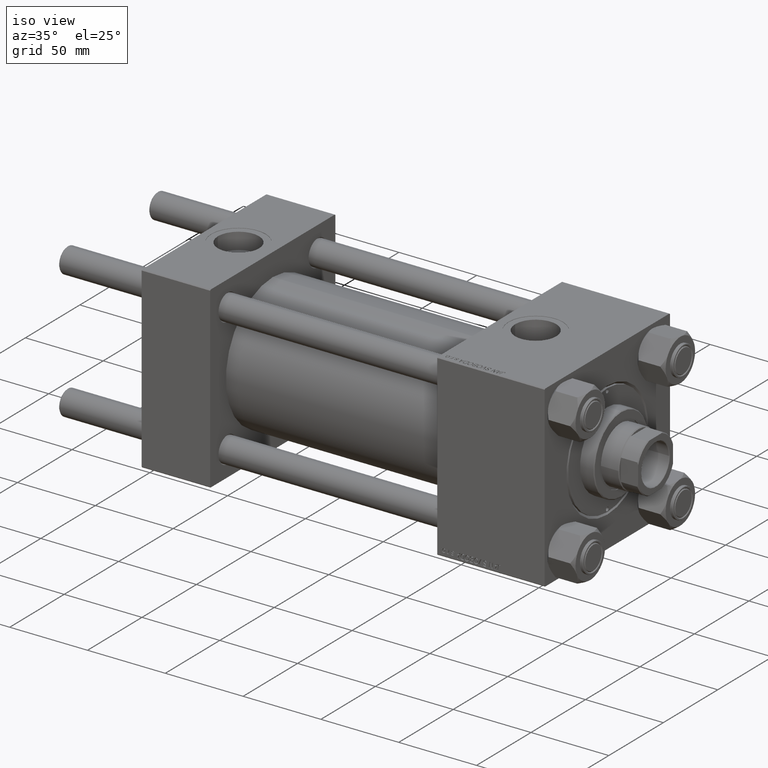
[diagram: clean part render]
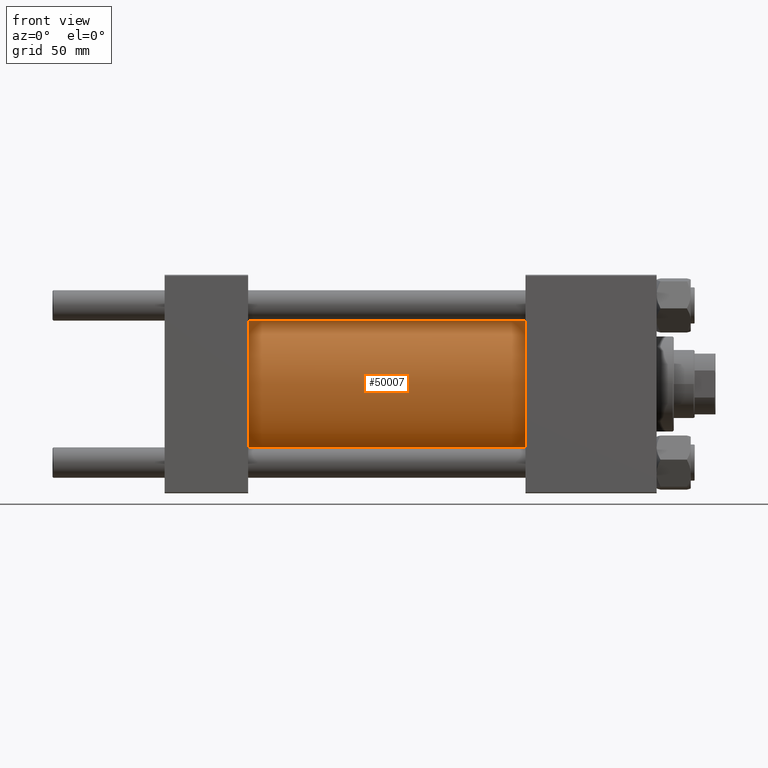
[diagram: tour spotlight — one face highlighted and labeled with its STEP entity id]
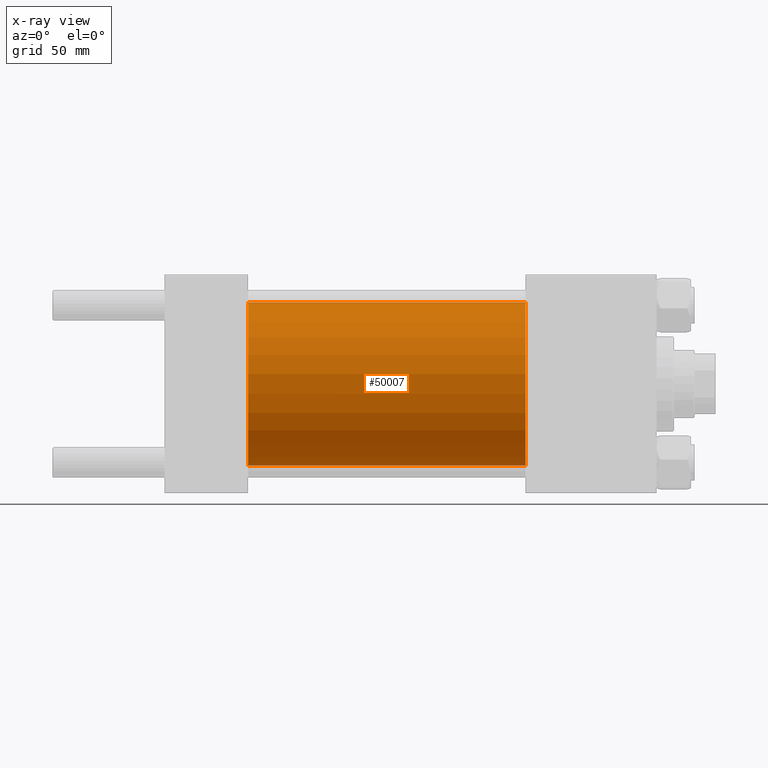
[diagram: x-ray of the same camera — body ghosted, this tour face saturated]
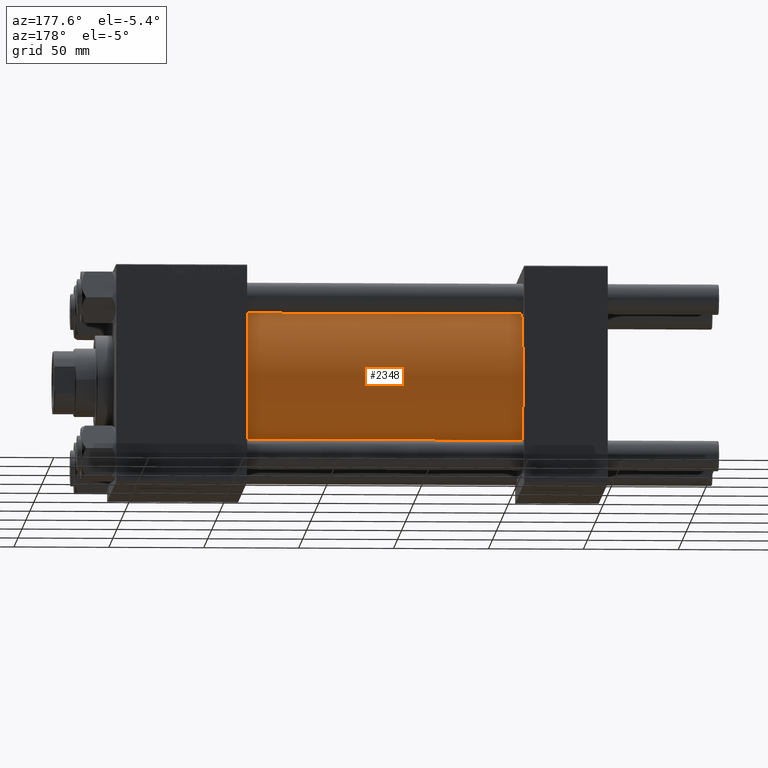
[diagram: tour spotlight — one face highlighted and labeled with its STEP entity id]
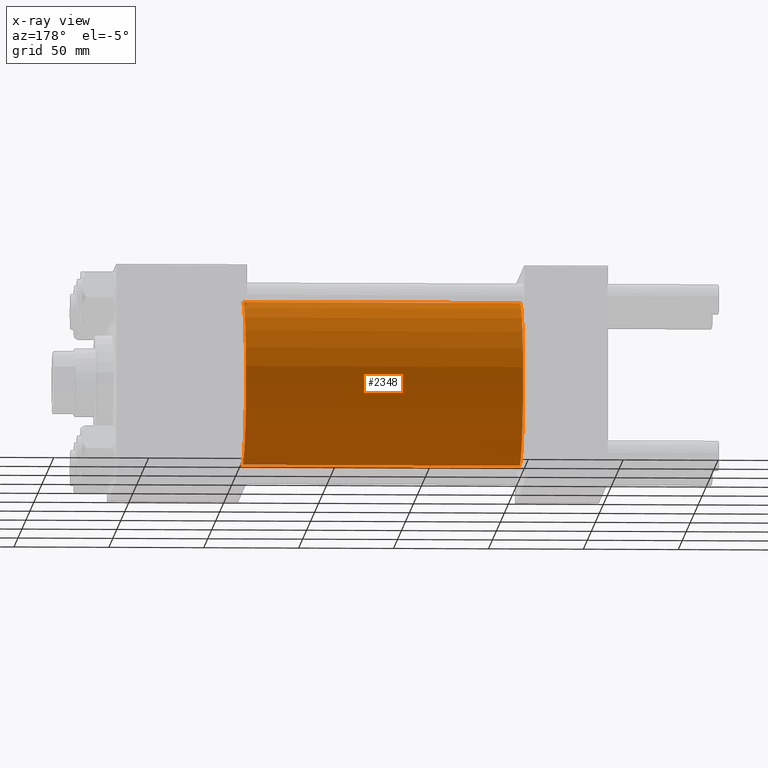
[diagram: x-ray of the same camera — body ghosted, this tour face saturated]
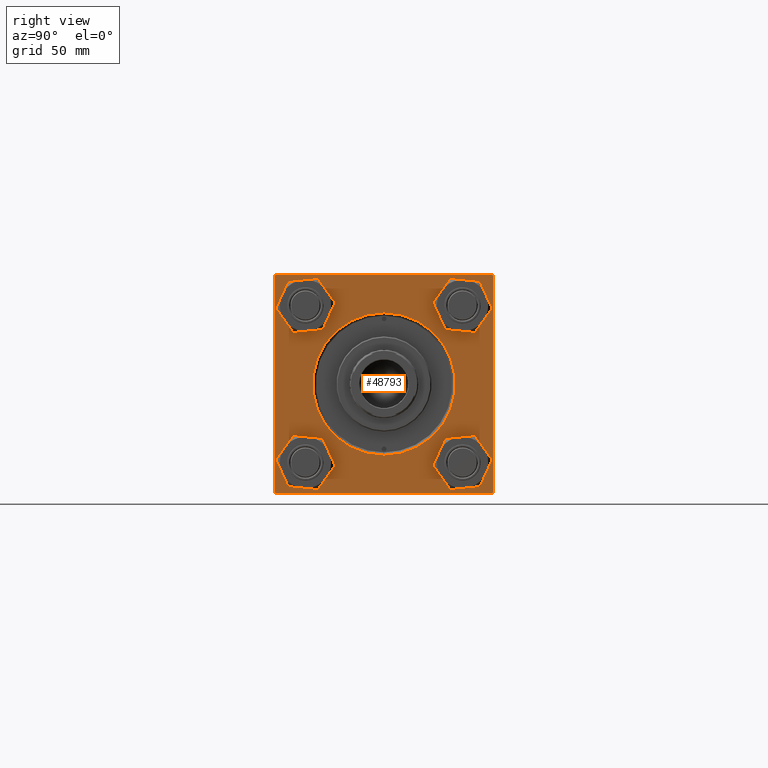
[diagram: tour spotlight — one face highlighted and labeled with its STEP entity id]
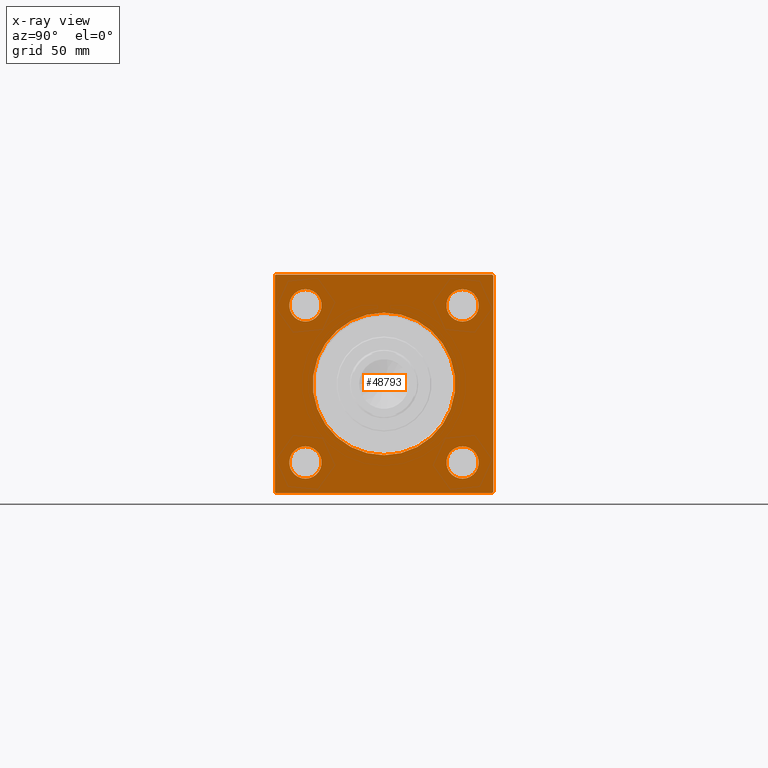
[diagram: x-ray of the same camera — body ghosted, this tour face saturated]
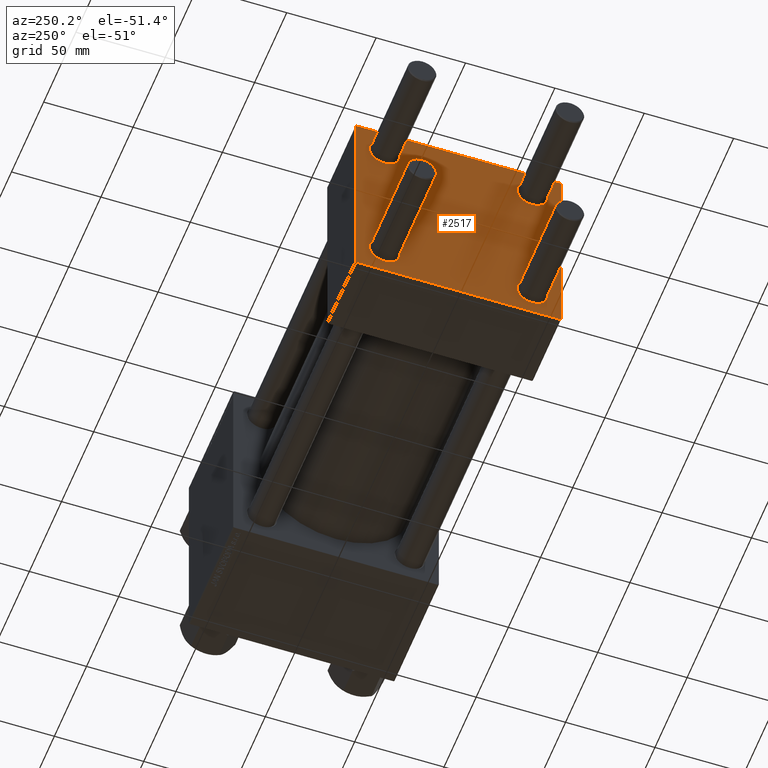
[diagram: tour spotlight — one face highlighted and labeled with its STEP entity id]
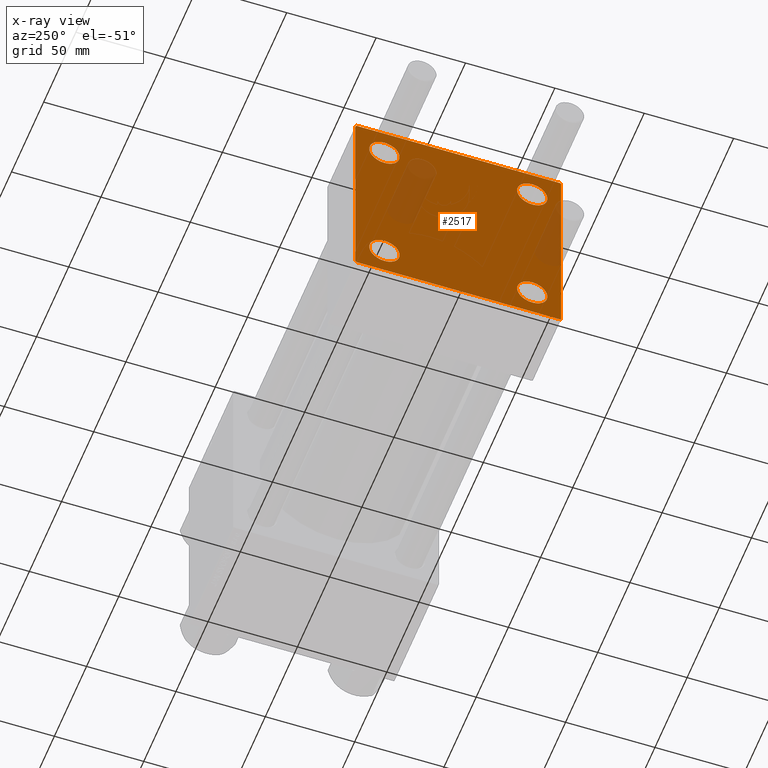
[diagram: x-ray of the same camera — body ghosted, this tour face saturated]
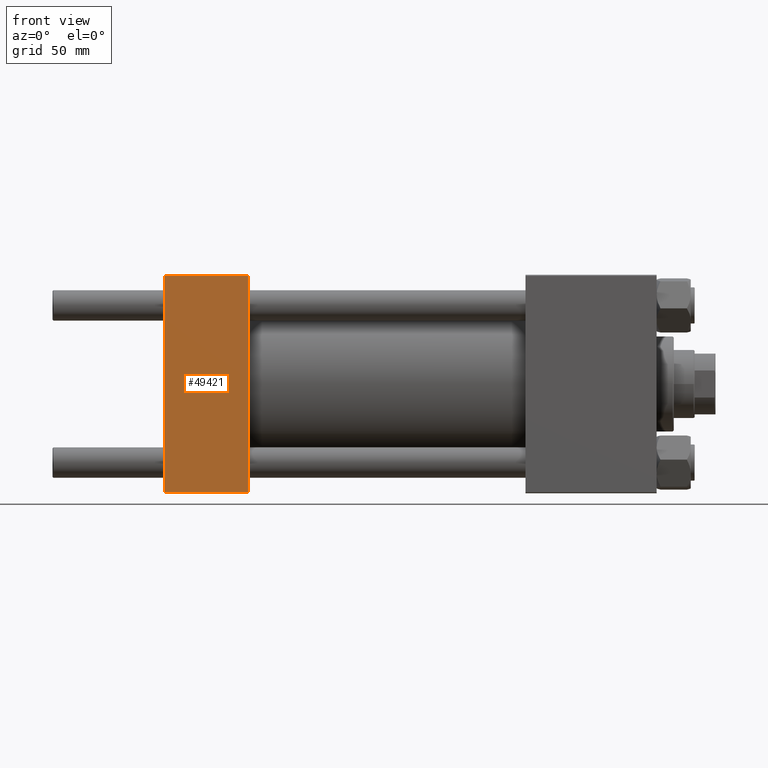
[diagram: tour spotlight — one face highlighted and labeled with its STEP entity id]
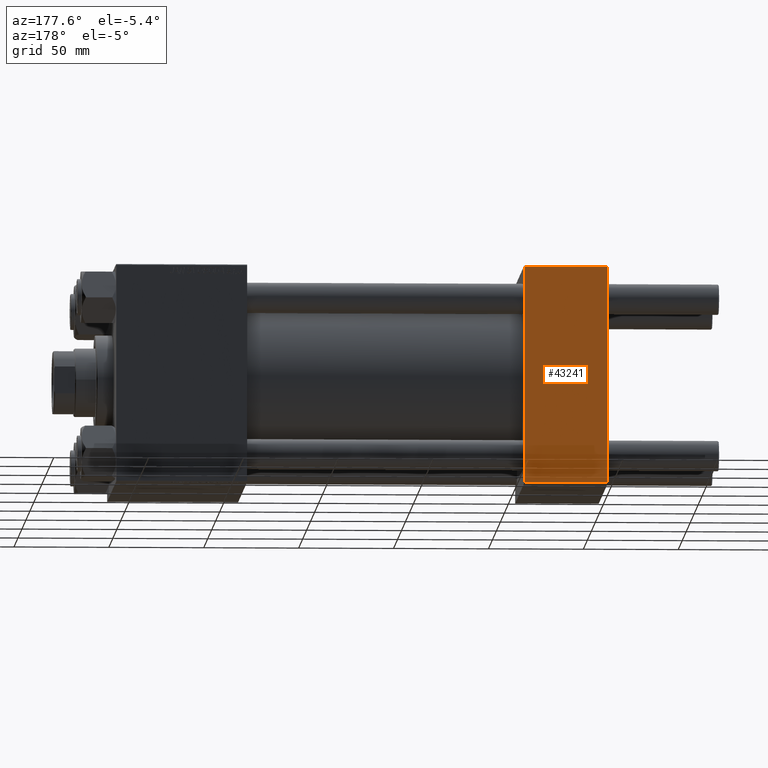
[diagram: tour spotlight — one face highlighted and labeled with its STEP entity id]
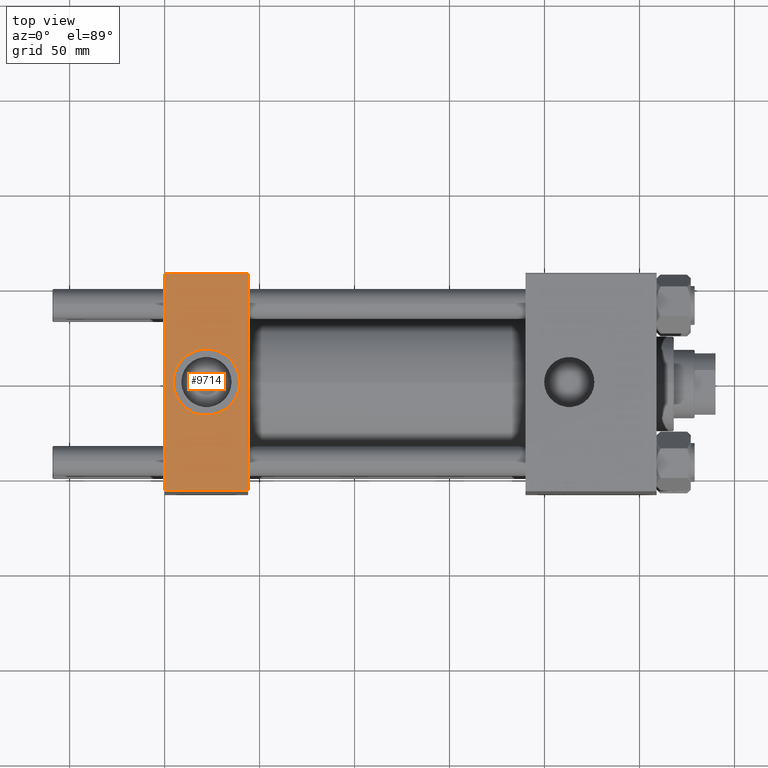
[diagram: tour spotlight — one face highlighted and labeled with its STEP entity id]
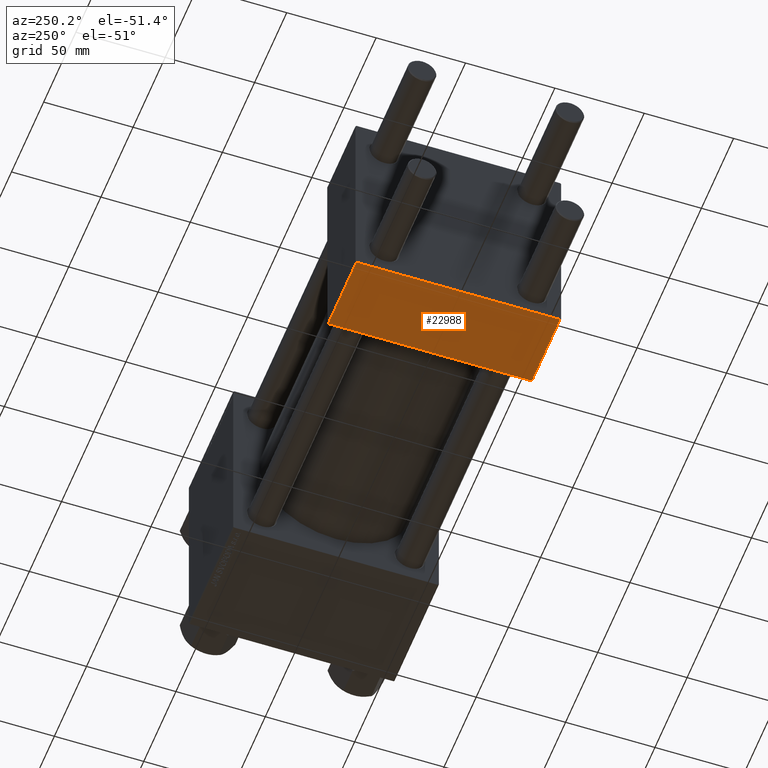
[diagram: tour spotlight — one face highlighted and labeled with its STEP entity id]
A machine part: a face-by-face anatomy tour. The part has 1188 B-rep faces; the first image is the clean iso view, then the 8 largest visible faces are spotlighted one at a time (largest first), each with its STEP entity span.

Face 1 — front view, entity #50007. An x-ray twin of the same camera follows (body ghosted, this face saturated) — the face is partly hidden behind the body. In plain terms, the highlighted cylindrical surface (partial cylindrical patch) has radius 43 mm, axis along (-1, -0, -0).
Definition (entity closure, byte-faithful):
#2848 = VERTEX_POINT ( 'NONE', #14844 ) ;
#2995 = CARTESIAN_POINT ( 'NONE',  ( 43.99999999999998579, 5.265981236333618470E-15, -43.00000000000000000 ) ) ;
#3286 = EDGE_CURVE ( 'NONE', #2848, #18917, #8701, .T. ) ;
#4464 = DIRECTION ( 'NONE',  ( 0.000000000000000000, 0.000000000000000000, 1.000000000000000000 ) ) ;
#7645 = EDGE_CURVE ( 'NONE', #2848, #29770, #43073, .T. ) ;
#8701 = LINE ( 'NONE', #22565, #14472 ) ;
#9273 = CARTESIAN_POINT ( 'NONE',  ( 190.0000000000000000, 0.000000000000000000, 0.000000000000000000 ) ) ;
#9527 = VECTOR ( 'NONE', #27617, 1000.000000000000000 ) ;
#9976 = ORIENTED_EDGE ( 'NONE', *, *, #42647, .F. ) ;
#10314 = CARTESIAN_POINT ( 'NONE',  ( 190.0000000000000000, 0.000000000000000000, 0.000000000000000000 ) ) ;
#13534 = DIRECTION ( 'NONE',  ( 1.000000000000000000, -0.000000000000000000, 0.000000000000000000 ) ) ;
#14087 = ORIENTED_EDGE ( 'NONE', *, *, #22125, .T. ) ;
#14472 = VECTOR ( 'NONE', #30713, 1000.000000000000000 ) ;
#14844 = CARTESIAN_POINT ( 'NONE',  ( 190.0000000000000000, 0.000000000000000000, 43.00000000000000000 ) ) ;
#15467 = AXIS2_PLACEMENT_3D ( 'NONE', #9273, #40353, #4464 ) ;
#17601 = CARTESIAN_POINT ( 'NONE',  ( 43.99999999999998579, 0.000000000000000000, 0.000000000000000000 ) ) ;
#18917 = VERTEX_POINT ( 'NONE', #42419 ) ;
#19478 = CARTESIAN_POINT ( 'NONE',  ( 190.0000000000000000, 5.265981236333618470E-15, -43.00000000000000000 ) ) ;
#19708 = EDGE_LOOP ( 'NONE', ( #9976, #48066, #41676, #14087 ) ) ;
#20498 = AXIS2_PLACEMENT_3D ( 'NONE', #17601, #13534, #39787 ) ;
#21533 = DIRECTION ( 'NONE',  ( 1.000000000000000000, 0.000000000000000000, 0.000000000000000000 ) ) ;
#22125 = EDGE_CURVE ( 'NONE', #18917, #48135, #31089, .T. ) ;
#22565 = CARTESIAN_POINT ( 'NONE',  ( 190.0000000000000000, 0.000000000000000000, 43.00000000000000000 ) ) ;
#24074 = FACE_OUTER_BOUND ( 'NONE', #19708, .T. ) ;
#27125 = LINE ( 'NONE', #19478, #9527 ) ;
#27617 = DIRECTION ( 'NONE',  ( -1.000000000000000000, -0.000000000000000000, -0.000000000000000000 ) ) ;
#27631 = AXIS2_PLACEMENT_3D ( 'NONE', #10314, #21533, #41132 ) ;
#29770 = VERTEX_POINT ( 'NONE', #48013 ) ;
#30713 = DIRECTION ( 'NONE',  ( -1.000000000000000000, -0.000000000000000000, -0.000000000000000000 ) ) ;
#31089 = CIRCLE ( 'NONE', #20498, 43.00000000000000000 ) ;
#35800 = CYLINDRICAL_SURFACE ( 'NONE', #15467, 43.00000000000000000 ) ;
#39787 = DIRECTION ( 'NONE',  ( 0.000000000000000000, 0.000000000000000000, 1.000000000000000000 ) ) ;
#40353 = DIRECTION ( 'NONE',  ( -1.000000000000000000, -0.000000000000000000, -0.000000000000000000 ) ) ;
#41132 = DIRECTION ( 'NONE',  ( 0.000000000000000000, 0.000000000000000000, -1.000000000000000000 ) ) ;
#41676 = ORIENTED_EDGE ( 'NONE', *, *, #3286, .T. ) ;
#42419 = CARTESIAN_POINT ( 'NONE',  ( 43.99999999999998579, 0.000000000000000000, 43.00000000000000000 ) ) ;
#42647 = EDGE_CURVE ( 'NONE', #29770, #48135, #27125, .T. ) ;
#43073 = CIRCLE ( 'NONE', #27631, 43.00000000000000000 ) ;
#48013 = CARTESIAN_POINT ( 'NONE',  ( 190.0000000000000000, 5.265981236333618470E-15, -43.00000000000000000 ) ) ;
#48066 = ORIENTED_EDGE ( 'NONE', *, *, #7645, .F. ) ;
#48135 = VERTEX_POINT ( 'NONE', #2995 ) ;
#50007 = ADVANCED_FACE ( 'NONE', ( #24074 ), #35800, .T. ) ;

Face 2 — auxiliary view, entity #2348. An x-ray twin of the same camera follows (body ghosted, this face saturated) — the face is partly hidden behind the body. In plain terms, the highlighted cylindrical surface (partial cylindrical patch) has radius 43 mm, axis along (-1, -0, -0).
Definition (entity closure, byte-faithful):
#1 = CIRCLE ( 'NONE', #11428, 43.00000000000000000 ) ;
#2348 = ADVANCED_FACE ( 'NONE', ( #6340 ), #18297, .T. ) ;
#2848 = VERTEX_POINT ( 'NONE', #14844 ) ;
#2995 = CARTESIAN_POINT ( 'NONE',  ( 43.99999999999998579, 5.265981236333618470E-15, -43.00000000000000000 ) ) ;
#3286 = EDGE_CURVE ( 'NONE', #2848, #18917, #8701, .T. ) ;
#3370 = DIRECTION ( 'NONE',  ( 1.000000000000000000, 0.000000000000000000, 0.000000000000000000 ) ) ;
#3655 = ORIENTED_EDGE ( 'NONE', *, *, #41262, .F. ) ;
#6340 = FACE_OUTER_BOUND ( 'NONE', #17895, .T. ) ;
#7167 = DIRECTION ( 'NONE',  ( 0.000000000000000000, 0.000000000000000000, 1.000000000000000000 ) ) ;
#8344 = ORIENTED_EDGE ( 'NONE', *, *, #3286, .F. ) ;
#8701 = LINE ( 'NONE', #22565, #14472 ) ;
#9299 = EDGE_CURVE ( 'NONE', #48135, #18917, #1, .T. ) ;
#9527 = VECTOR ( 'NONE', #27617, 1000.000000000000000 ) ;
#11106 = CIRCLE ( 'NONE', #46074, 43.00000000000000000 ) ;
#11428 = AXIS2_PLACEMENT_3D ( 'NONE', #26516, #42051, #7167 ) ;
#12448 = ORIENTED_EDGE ( 'NONE', *, *, #9299, .T. ) ;
#14472 = VECTOR ( 'NONE', #30713, 1000.000000000000000 ) ;
#14844 = CARTESIAN_POINT ( 'NONE',  ( 190.0000000000000000, 0.000000000000000000, 43.00000000000000000 ) ) ;
#17895 = EDGE_LOOP ( 'NONE', ( #3655, #36713, #12448, #8344 ) ) ;
#18297 = CYLINDRICAL_SURFACE ( 'NONE', #25016, 43.00000000000000000 ) ;
#18917 = VERTEX_POINT ( 'NONE', #42419 ) ;
#19478 = CARTESIAN_POINT ( 'NONE',  ( 190.0000000000000000, 5.265981236333618470E-15, -43.00000000000000000 ) ) ;
#22565 = CARTESIAN_POINT ( 'NONE',  ( 190.0000000000000000, 0.000000000000000000, 43.00000000000000000 ) ) ;
#25016 = AXIS2_PLACEMENT_3D ( 'NONE', #33856, #48856, #26451 ) ;
#26451 = DIRECTION ( 'NONE',  ( 0.000000000000000000, 0.000000000000000000, 1.000000000000000000 ) ) ;
#26516 = CARTESIAN_POINT ( 'NONE',  ( 43.99999999999998579, 0.000000000000000000, 0.000000000000000000 ) ) ;
#27125 = LINE ( 'NONE', #19478, #9527 ) ;
#27617 = DIRECTION ( 'NONE',  ( -1.000000000000000000, -0.000000000000000000, -0.000000000000000000 ) ) ;
#29770 = VERTEX_POINT ( 'NONE', #48013 ) ;
#30113 = DIRECTION ( 'NONE',  ( 0.000000000000000000, 0.000000000000000000, -1.000000000000000000 ) ) ;
#30713 = DIRECTION ( 'NONE',  ( -1.000000000000000000, -0.000000000000000000, -0.000000000000000000 ) ) ;
#33693 = CARTESIAN_POINT ( 'NONE',  ( 190.0000000000000000, 0.000000000000000000, 0.000000000000000000 ) ) ;
#33856 = CARTESIAN_POINT ( 'NONE',  ( 190.0000000000000000, 0.000000000000000000, 0.000000000000000000 ) ) ;
#36713 = ORIENTED_EDGE ( 'NONE', *, *, #42647, .T. ) ;
#41262 = EDGE_CURVE ( 'NONE', #29770, #2848, #11106, .T. ) ;
#42051 = DIRECTION ( 'NONE',  ( 1.000000000000000000, -0.000000000000000000, 0.000000000000000000 ) ) ;
#42419 = CARTESIAN_POINT ( 'NONE',  ( 43.99999999999998579, 0.000000000000000000, 43.00000000000000000 ) ) ;
#42647 = EDGE_CURVE ( 'NONE', #29770, #48135, #27125, .T. ) ;
#46074 = AXIS2_PLACEMENT_3D ( 'NONE', #33693, #3370, #30113 ) ;
#48013 = CARTESIAN_POINT ( 'NONE',  ( 190.0000000000000000, 5.265981236333618470E-15, -43.00000000000000000 ) ) ;
#48135 = VERTEX_POINT ( 'NONE', #2995 ) ;
#48856 = DIRECTION ( 'NONE',  ( -1.000000000000000000, -0.000000000000000000, -0.000000000000000000 ) ) ;

Face 3 — right view, entity #48793. An x-ray twin of the same camera follows (body ghosted, this face saturated) — the face is partly hidden behind the body. In plain terms, the highlighted planar face has unit normal (-1, 0, 0).
Definition (entity closure, byte-faithful):
#248 = CARTESIAN_POINT ( 'NONE',  ( 259.0000000000000000, 57.50000000000000000, -57.49999999999996447 ) ) ;
#540 = FACE_BOUND ( 'NONE', #28983, .T. ) ;
#748 = CARTESIAN_POINT ( 'NONE',  ( 259.0000000000000000, -57.49999999999999289, 57.00000000000004974 ) ) ;
#790 = EDGE_CURVE ( 'NONE', #48081, #39484, #19279, .T. ) ;
#798 = CARTESIAN_POINT ( 'NONE',  ( 259.0000000000000000, -41.34999999999998721, -32.85000000000005826 ) ) ;
#1090 = ORIENTED_EDGE ( 'NONE', *, *, #50160, .T. ) ;
#1249 = CARTESIAN_POINT ( 'NONE',  ( 259.0000000000000000, 41.34999999999999432, 41.35000000000000142 ) ) ;
#1254 = VECTOR ( 'NONE', #32238, 1000.000000000000000 ) ;
#1333 = ORIENTED_EDGE ( 'NONE', *, *, #18568, .T. ) ;
#1602 = EDGE_CURVE ( 'NONE', #26840, #41482, #22557, .T. ) ;
#1749 = DIRECTION ( 'NONE',  ( -1.000000000000000000, 0.000000000000000000, -0.000000000000000000 ) ) ;
#1751 = CARTESIAN_POINT ( 'NONE',  ( 259.0000000000000000, 57.00000000000000000, 57.50000000000000711 ) ) ;
#1819 = VERTEX_POINT ( 'NONE', #47420 ) ;
#1892 = CARTESIAN_POINT ( 'NONE',  ( 259.0000000000000000, 4.592425496802571211E-15, 37.49999999999997868 ) ) ;
#2346 = EDGE_CURVE ( 'NONE', #43845, #5719, #19320, .T. ) ;
#2864 = CARTESIAN_POINT ( 'NONE',  ( 259.0000000000000000, 57.50000000000000000, -56.99999999999996447 ) ) ;
#2903 = DIRECTION ( 'NONE',  ( -1.000000000000000000, 0.000000000000000000, -0.000000000000000000 ) ) ;
#3948 = DIRECTION ( 'NONE',  ( 0.000000000000000000, 0.000000000000000000, 1.000000000000000000 ) ) ;
#5084 = AXIS2_PLACEMENT_3D ( 'NONE', #33074, #1749, #48576 ) ;
#5330 = DIRECTION ( 'NONE',  ( -0.000000000000000000, -0.7071067811865524577, -0.7071067811865426878 ) ) ;
#5719 = VERTEX_POINT ( 'NONE', #39695 ) ;
#6047 = ORIENTED_EDGE ( 'NONE', *, *, #20749, .T. ) ;
#6327 = VERTEX_POINT ( 'NONE', #46450 ) ;
#6941 = DIRECTION ( 'NONE',  ( -1.000000000000000000, 0.000000000000000000, -0.000000000000000000 ) ) ;
#7929 = EDGE_CURVE ( 'NONE', #23716, #6327, #10545, .T. ) ;
#8194 = FACE_BOUND ( 'NONE', #16434, .T. ) ;
#8541 = CARTESIAN_POINT ( 'NONE',  ( 259.0000000000000000, -57.49999999999999289, 57.49999999999999289 ) ) ;
#8933 = FACE_OUTER_BOUND ( 'NONE', #39358, .T. ) ;
#9847 = ORIENTED_EDGE ( 'NONE', *, *, #31489, .T. ) ;
#10259 = CARTESIAN_POINT ( 'NONE',  ( 259.0000000000000000, 57.00000000000000000, 57.50000000000000711 ) ) ;
#10545 = CIRCLE ( 'NONE', #30883, 8.499999999999952038 ) ;
#11399 = CIRCLE ( 'NONE', #39865, 8.499999999999952038 ) ;
#11536 = EDGE_CURVE ( 'NONE', #41482, #26840, #39810, .T. ) ;
#12145 = EDGE_CURVE ( 'NONE', #5719, #43845, #33311, .T. ) ;
#12504 = ORIENTED_EDGE ( 'NONE', *, *, #12823, .T. ) ;
#12532 = ORIENTED_EDGE ( 'NONE', *, *, #17402, .F. ) ;
#12755 = DIRECTION ( 'NONE',  ( -1.000000000000000000, 0.000000000000000000, -0.000000000000000000 ) ) ;
#12823 = EDGE_CURVE ( 'NONE', #13407, #20132, #20622, .T. ) ;
#12922 = CARTESIAN_POINT ( 'NONE',  ( 259.0000000000000000, 57.50000000000000000, 57.50000000000000711 ) ) ;
#12950 = DIRECTION ( 'NONE',  ( 0.000000000000000000, -0.7071067811865474617, 0.7071067811865474617 ) ) ;
#13331 = CARTESIAN_POINT ( 'NONE',  ( 259.0000000000000000, 57.50000000000000000, -56.99999999999996447 ) ) ;
#13407 = VERTEX_POINT ( 'NONE', #21943 ) ;
#13786 = ORIENTED_EDGE ( 'NONE', *, *, #2346, .T. ) ;
#13929 = DIRECTION ( 'NONE',  ( 0.000000000000000000, 0.000000000000000000, -1.000000000000000000 ) ) ;
#13986 = VERTEX_POINT ( 'NONE', #13331 ) ;
#14574 = DIRECTION ( 'NONE',  ( -0.000000000000000000, 0.7071067811865474617, 0.7071067811865474617 ) ) ;
#15503 = CARTESIAN_POINT ( 'NONE',  ( 259.0000000000000000, 41.34999999999999432, 32.85000000000005116 ) ) ;
#15569 = VERTEX_POINT ( 'NONE', #18601 ) ;
#15641 = CIRCLE ( 'NONE', #28642, 37.49999999999997868 ) ;
#16071 = ORIENTED_EDGE ( 'NONE', *, *, #48609, .T. ) ;
#16285 = LINE ( 'NONE', #248, #18022 ) ;
#16434 = EDGE_LOOP ( 'NONE', ( #40187, #25197 ) ) ;
#16791 = CARTESIAN_POINT ( 'NONE',  ( 259.0000000000000000, -57.49999999999999289, 57.00000000000004974 ) ) ;
#17402 = EDGE_CURVE ( 'NONE', #36926, #1819, #16285, .T. ) ;
#17833 = AXIS2_PLACEMENT_3D ( 'NONE', #1249, #21112, #44023 ) ;
#18022 = VECTOR ( 'NONE', #23924, 1000.000000000000000 ) ;
#18568 = EDGE_CURVE ( 'NONE', #44629, #41616, #15641, .T. ) ;
#18601 = CARTESIAN_POINT ( 'NONE',  ( 259.0000000000000000, -57.49999999999999289, -57.00000000000003553 ) ) ;
#18892 = CARTESIAN_POINT ( 'NONE',  ( 259.0000000000000000, 41.34999999999999432, 49.84999999999995879 ) ) ;
#19214 = ORIENTED_EDGE ( 'NONE', *, *, #790, .T. ) ;
#19271 = ORIENTED_EDGE ( 'NONE', *, *, #11536, .T. ) ;
#19279 = CIRCLE ( 'NONE', #49358, 8.499999999999952038 ) ;
#19320 = CIRCLE ( 'NONE', #37200, 8.499999999999952038 ) ;
#19403 = DIRECTION ( 'NONE',  ( -0.000000000000000000, 0.000000000000000000, 1.000000000000000000 ) ) ;
#20074 = CARTESIAN_POINT ( 'NONE',  ( 259.0000000000000000, 0.000000000000000000, -37.49999999999997868 ) ) ;
#20132 = VERTEX_POINT ( 'NONE', #748 ) ;
#20307 = VECTOR ( 'NONE', #14574, 1000.000000000000114 ) ;
#20622 = LINE ( 'NONE', #16791, #28466 ) ;
#20714 = LINE ( 'NONE', #20968, #33771 ) ;
#20749 = EDGE_CURVE ( 'NONE', #15569, #1819, #42899, .T. ) ;
#20968 = CARTESIAN_POINT ( 'NONE',  ( 259.0000000000000000, 57.50000000000000000, 57.50000000000000711 ) ) ;
#21112 = DIRECTION ( 'NONE',  ( -1.000000000000000000, 0.000000000000000000, -0.000000000000000000 ) ) ;
#21325 = LINE ( 'NONE', #12922, #25780 ) ;
#21943 = CARTESIAN_POINT ( 'NONE',  ( 259.0000000000000000, -57.00000000000004263, 57.49999999999999289 ) ) ;
#22133 = DIRECTION ( 'NONE',  ( -1.000000000000000000, 0.000000000000000000, -0.000000000000000000 ) ) ;
#22557 = CIRCLE ( 'NONE', #34754, 8.499999999999952038 ) ;
#23406 = EDGE_CURVE ( 'NONE', #41616, #44629, #41687, .T. ) ;
#23484 = DIRECTION ( 'NONE',  ( -1.000000000000000000, 0.000000000000000000, -0.000000000000000000 ) ) ;
#23552 = DIRECTION ( 'NONE',  ( 0.000000000000000000, 0.7071067811865524577, -0.7071067811865426878 ) ) ;
#23706 = VECTOR ( 'NONE', #23552, 1000.000000000000000 ) ;
#23716 = VERTEX_POINT ( 'NONE', #798 ) ;
#23733 = FACE_BOUND ( 'NONE', #39722, .T. ) ;
#23807 = ORIENTED_EDGE ( 'NONE', *, *, #23406, .T. ) ;
#23924 = DIRECTION ( 'NONE',  ( 0.000000000000000000, -1.000000000000000000, -1.206764157201257291E-16 ) ) ;
#24130 = DIRECTION ( 'NONE',  ( -1.000000000000000000, 0.000000000000000000, -0.000000000000000000 ) ) ;
#24556 = CARTESIAN_POINT ( 'NONE',  ( 259.0000000000000000, -41.34999999999998721, 41.35000000000000853 ) ) ;
#24744 = VERTEX_POINT ( 'NONE', #10259 ) ;
#24924 = DIRECTION ( 'NONE',  ( -1.000000000000000000, 0.000000000000000000, -0.000000000000000000 ) ) ;
#24956 = CARTESIAN_POINT ( 'NONE',  ( 259.0000000000000000, 41.34999999999999432, -49.84999999999995879 ) ) ;
#25197 = ORIENTED_EDGE ( 'NONE', *, *, #7929, .T. ) ;
#25780 = VECTOR ( 'NONE', #13929, 1000.000000000000000 ) ;
#25900 = ORIENTED_EDGE ( 'NONE', *, *, #30059, .T. ) ;
#26325 = CARTESIAN_POINT ( 'NONE',  ( 259.0000000000000000, 41.34999999999999432, -41.35000000000000142 ) ) ;
#26417 = CARTESIAN_POINT ( 'NONE',  ( 259.0000000000000000, 57.50000000000000000, 57.00000000000000711 ) ) ;
#26717 = ORIENTED_EDGE ( 'NONE', *, *, #12145, .T. ) ;
#26840 = VERTEX_POINT ( 'NONE', #18892 ) ;
#27398 = LINE ( 'NONE', #8541, #1254 ) ;
#27876 = DIRECTION ( 'NONE',  ( -1.000000000000000000, 0.000000000000000000, -0.000000000000000000 ) ) ;
#27949 = CARTESIAN_POINT ( 'NONE',  ( 259.0000000000000000, 41.34999999999999432, 41.35000000000000142 ) ) ;
#28040 = FACE_BOUND ( 'NONE', #34347, .T. ) ;
#28466 = VECTOR ( 'NONE', #5330, 1000.000000000000000 ) ;
#28642 = AXIS2_PLACEMENT_3D ( 'NONE', #33591, #24924, #40469 ) ;
#28983 = EDGE_LOOP ( 'NONE', ( #23807, #1333 ) ) ;
#29881 = ORIENTED_EDGE ( 'NONE', *, *, #1602, .T. ) ;
#30059 = EDGE_CURVE ( 'NONE', #24744, #13407, #20714, .T. ) ;
#30883 = AXIS2_PLACEMENT_3D ( 'NONE', #41823, #6941, #34208 ) ;
#31489 = EDGE_CURVE ( 'NONE', #20132, #15569, #27398, .T. ) ;
#32238 = DIRECTION ( 'NONE',  ( 0.000000000000000000, 0.000000000000000000, -1.000000000000000000 ) ) ;
#33074 = CARTESIAN_POINT ( 'NONE',  ( 259.0000000000000000, 0.000000000000000000, 0.000000000000000000 ) ) ;
#33078 = LINE ( 'NONE', #1751, #41886 ) ;
#33311 = CIRCLE ( 'NONE', #47935, 8.499999999999952038 ) ;
#33394 = EDGE_CURVE ( 'NONE', #48918, #24744, #33078, .T. ) ;
#33591 = CARTESIAN_POINT ( 'NONE',  ( 259.0000000000000000, 0.000000000000000000, 0.000000000000000000 ) ) ;
#33771 = VECTOR ( 'NONE', #36254, 1000.000000000000000 ) ;
#34208 = DIRECTION ( 'NONE',  ( 0.000000000000000000, 0.000000000000000000, 1.000000000000000000 ) ) ;
#34347 = EDGE_LOOP ( 'NONE', ( #26717, #13786 ) ) ;
#34754 = AXIS2_PLACEMENT_3D ( 'NONE', #27949, #24130, #43716 ) ;
#35449 = FACE_BOUND ( 'NONE', #36322, .T. ) ;
#35784 = CARTESIAN_POINT ( 'NONE',  ( 259.0000000000000000, 41.34999999999999432, -41.35000000000000142 ) ) ;
#36254 = DIRECTION ( 'NONE',  ( 0.000000000000000000, -1.000000000000000000, -1.206764157201257291E-16 ) ) ;
#36322 = EDGE_LOOP ( 'NONE', ( #19271, #29881 ) ) ;
#36926 = VERTEX_POINT ( 'NONE', #47893 ) ;
#37200 = AXIS2_PLACEMENT_3D ( 'NONE', #41225, #22133, #37678 ) ;
#37678 = DIRECTION ( 'NONE',  ( 0.000000000000000000, 0.000000000000000000, 1.000000000000000000 ) ) ;
#38977 = EDGE_CURVE ( 'NONE', #48918, #13986, #21325, .T. ) ;
#39348 = CARTESIAN_POINT ( 'NONE',  ( 259.0000000000000000, -57.00000000000004263, -57.49999999999997868 ) ) ;
#39358 = EDGE_LOOP ( 'NONE', ( #9847, #6047, #12532, #16071, #44728, #44638, #25900, #12504 ) ) ;
#39484 = VERTEX_POINT ( 'NONE', #24956 ) ;
#39602 = DIRECTION ( 'NONE',  ( 0.000000000000000000, 0.000000000000000000, 1.000000000000000000 ) ) ;
#39695 = CARTESIAN_POINT ( 'NONE',  ( 259.0000000000000000, -41.34999999999998721, 32.85000000000005826 ) ) ;
#39722 = EDGE_LOOP ( 'NONE', ( #1090, #19214 ) ) ;
#39771 = CARTESIAN_POINT ( 'NONE',  ( 259.0000000000000000, -41.34999999999998721, -41.35000000000000853 ) ) ;
#39810 = CIRCLE ( 'NONE', #17833, 8.499999999999952038 ) ;
#39865 = AXIS2_PLACEMENT_3D ( 'NONE', #26325, #2903, #49995 ) ;
#40187 = ORIENTED_EDGE ( 'NONE', *, *, #49467, .T. ) ;
#40469 = DIRECTION ( 'NONE',  ( 0.000000000000000000, 0.000000000000000000, 1.000000000000000000 ) ) ;
#41225 = CARTESIAN_POINT ( 'NONE',  ( 259.0000000000000000, -41.34999999999998721, 41.35000000000000853 ) ) ;
#41482 = VERTEX_POINT ( 'NONE', #15503 ) ;
#41491 = CIRCLE ( 'NONE', #43085, 8.499999999999952038 ) ;
#41616 = VERTEX_POINT ( 'NONE', #20074 ) ;
#41687 = CIRCLE ( 'NONE', #5084, 37.49999999999997868 ) ;
#41823 = CARTESIAN_POINT ( 'NONE',  ( 259.0000000000000000, -41.34999999999998721, -41.35000000000000853 ) ) ;
#41886 = VECTOR ( 'NONE', #12950, 1000.000000000000114 ) ;
#42459 = CARTESIAN_POINT ( 'NONE',  ( 259.0000000000000000, 41.34999999999999432, -32.85000000000005116 ) ) ;
#42899 = LINE ( 'NONE', #39348, #23706 ) ;
#43085 = AXIS2_PLACEMENT_3D ( 'NONE', #39771, #23484, #47894 ) ;
#43590 = CARTESIAN_POINT ( 'NONE',  ( 259.0000000000000000, -41.34999999999998721, 49.84999999999996589 ) ) ;
#43716 = DIRECTION ( 'NONE',  ( 0.000000000000000000, 0.000000000000000000, 1.000000000000000000 ) ) ;
#43845 = VERTEX_POINT ( 'NONE', #43590 ) ;
#44023 = DIRECTION ( 'NONE',  ( 0.000000000000000000, 0.000000000000000000, 1.000000000000000000 ) ) ;
#44394 = DIRECTION ( 'NONE',  ( -1.000000000000000000, 0.000000000000000000, -0.000000000000000000 ) ) ;
#44629 = VERTEX_POINT ( 'NONE', #1892 ) ;
#44638 = ORIENTED_EDGE ( 'NONE', *, *, #33394, .T. ) ;
#44674 = AXIS2_PLACEMENT_3D ( 'NONE', #47129, #12755, #19403 ) ;
#44728 = ORIENTED_EDGE ( 'NONE', *, *, #38977, .F. ) ;
#45373 = LINE ( 'NONE', #2864, #20307 ) ;
#46450 = CARTESIAN_POINT ( 'NONE',  ( 259.0000000000000000, -41.34999999999998721, -49.84999999999996589 ) ) ;
#47129 = CARTESIAN_POINT ( 'NONE',  ( 259.0000000000000000, 0.000000000000000000, 0.000000000000000000 ) ) ;
#47420 = CARTESIAN_POINT ( 'NONE',  ( 259.0000000000000000, -57.00000000000004263, -57.49999999999997868 ) ) ;
#47637 = PLANE ( 'NONE',  #44674 ) ;
#47893 = CARTESIAN_POINT ( 'NONE',  ( 259.0000000000000000, 57.00000000000000000, -57.49999999999996447 ) ) ;
#47894 = DIRECTION ( 'NONE',  ( 0.000000000000000000, 0.000000000000000000, 1.000000000000000000 ) ) ;
#47935 = AXIS2_PLACEMENT_3D ( 'NONE', #24556, #44394, #39602 ) ;
#48081 = VERTEX_POINT ( 'NONE', #42459 ) ;
#48576 = DIRECTION ( 'NONE',  ( 0.000000000000000000, 0.000000000000000000, 1.000000000000000000 ) ) ;
#48609 = EDGE_CURVE ( 'NONE', #36926, #13986, #45373, .T. ) ;
#48793 = ADVANCED_FACE ( 'NONE', ( #8194, #23733, #35449, #28040, #540, #8933 ), #47637, .F. ) ;
#48918 = VERTEX_POINT ( 'NONE', #26417 ) ;
#49358 = AXIS2_PLACEMENT_3D ( 'NONE', #35784, #27876, #3948 ) ;
#49467 = EDGE_CURVE ( 'NONE', #6327, #23716, #41491, .T. ) ;
#49995 = DIRECTION ( 'NONE',  ( 0.000000000000000000, 0.000000000000000000, 1.000000000000000000 ) ) ;
#50160 = EDGE_CURVE ( 'NONE', #39484, #48081, #11399, .T. ) ;

Face 4 — auxiliary view, entity #2517. An x-ray twin of the same camera follows (body ghosted, this face saturated) — the face is partly hidden behind the body. In plain terms, the highlighted planar face has unit normal (-1, 0, 0).
Definition (entity closure, byte-faithful):
#375 = ORIENTED_EDGE ( 'NONE', *, *, #32703, .T. ) ;
#420 = ORIENTED_EDGE ( 'NONE', *, *, #35538, .T. ) ;
#483 = AXIS2_PLACEMENT_3D ( 'NONE', #25878, #31720, #11349 ) ;
#650 = CARTESIAN_POINT ( 'NONE',  ( 0.000000000000000000, -57.50000000000000711, 57.00000000000000711 ) ) ;
#713 = FACE_OUTER_BOUND ( 'NONE', #6873, .T. ) ;
#751 = DIRECTION ( 'NONE',  ( 0.000000000000000000, 0.000000000000000000, -1.000000000000000000 ) ) ;
#1207 = FACE_BOUND ( 'NONE', #11846, .T. ) ;
#1584 = CARTESIAN_POINT ( 'NONE',  ( 0.000000000000000000, 57.24999999999922551, 57.25000000000081712 ) ) ;
#2517 = ADVANCED_FACE ( 'NONE', ( #1207, #36355, #9337, #36610, #713 ), #43238, .T. ) ;
#2567 = VECTOR ( 'NONE', #11151, 1000.000000000000114 ) ;
#3209 = ORIENTED_EDGE ( 'NONE', *, *, #21263, .T. ) ;
#3535 = DIRECTION ( 'NONE',  ( 1.000000000000000000, -0.000000000000000000, 0.000000000000000000 ) ) ;
#3712 = VERTEX_POINT ( 'NONE', #25185 ) ;
#3770 = CARTESIAN_POINT ( 'NONE',  ( -0.000000000000000000, -57.25000000000081712, 57.24999999999922551 ) ) ;
#4094 = CARTESIAN_POINT ( 'NONE',  ( 0.000000000000000000, 41.34999999999999432, -41.35000000000000142 ) ) ;
#4218 = AXIS2_PLACEMENT_3D ( 'NONE', #8509, #39590, #4692 ) ;
#4692 = DIRECTION ( 'NONE',  ( 0.000000000000000000, 0.000000000000000000, 1.000000000000000000 ) ) ;
#4858 = CARTESIAN_POINT ( 'NONE',  ( 0.000000000000000000, -41.34999999999998721, 41.35000000000000853 ) ) ;
#5109 = DIRECTION ( 'NONE',  ( 0.000000000000000000, 0.000000000000000000, 1.000000000000000000 ) ) ;
#5168 = VERTEX_POINT ( 'NONE', #650 ) ;
#5193 = VERTEX_POINT ( 'NONE', #36552 ) ;
#5900 = EDGE_CURVE ( 'NONE', #43977, #21392, #47872, .T. ) ;
#6365 = EDGE_CURVE ( 'NONE', #27907, #11776, #20962, .T. ) ;
#6873 = EDGE_LOOP ( 'NONE', ( #375, #26128, #34626, #36430, #46717, #3209, #47441, #32723 ) ) ;
#6938 = CARTESIAN_POINT ( 'NONE',  ( 0.000000000000000000, -57.00000000000003553, 57.49999999999999289 ) ) ;
#8509 = CARTESIAN_POINT ( 'NONE',  ( 0.000000000000000000, -41.34999999999998721, -41.35000000000000853 ) ) ;
#8633 = DIRECTION ( 'NONE',  ( -0.000000000000000000, -0.7071067811865376918, -0.7071067811865573427 ) ) ;
#9072 = CARTESIAN_POINT ( 'NONE',  ( 0.000000000000000000, 41.34999999999999432, 32.85000000000000853 ) ) ;
#9213 = LINE ( 'NONE', #1584, #38713 ) ;
#9337 = FACE_BOUND ( 'NONE', #13523, .T. ) ;
#9377 = CARTESIAN_POINT ( 'NONE',  ( 0.000000000000000000, 41.34999999999999432, -32.85000000000000853 ) ) ;
#9424 = CARTESIAN_POINT ( 'NONE',  ( 0.000000000000000000, 41.34999999999999432, 49.85000000000000142 ) ) ;
#9913 = DIRECTION ( 'NONE',  ( 0.000000000000000000, 0.000000000000000000, 1.000000000000000000 ) ) ;
#10206 = VERTEX_POINT ( 'NONE', #22464 ) ;
#10395 = CARTESIAN_POINT ( 'NONE',  ( 0.000000000000000000, -57.00000000000000711, -57.50000000000000711 ) ) ;
#10418 = CARTESIAN_POINT ( 'NONE',  ( 0.000000000000000000, 41.34999999999999432, 41.35000000000000142 ) ) ;
#11151 = DIRECTION ( 'NONE',  ( -0.000000000000000000, 0.7071067811865376918, 0.7071067811865573427 ) ) ;
#11349 = DIRECTION ( 'NONE',  ( 0.000000000000000000, 0.000000000000000000, 1.000000000000000000 ) ) ;
#11386 = EDGE_CURVE ( 'NONE', #3712, #27907, #12215, .T. ) ;
#11479 = DIRECTION ( 'NONE',  ( 0.000000000000000000, 0.000000000000000000, 1.000000000000000000 ) ) ;
#11776 = VERTEX_POINT ( 'NONE', #10395 ) ;
#11846 = EDGE_LOOP ( 'NONE', ( #20738, #32885 ) ) ;
#12215 = LINE ( 'NONE', #41832, #35023 ) ;
#12766 = CIRCLE ( 'NONE', #50179, 8.499999999999992895 ) ;
#12851 = DIRECTION ( 'NONE',  ( 1.000000000000000000, -0.000000000000000000, 0.000000000000000000 ) ) ;
#13380 = EDGE_CURVE ( 'NONE', #11776, #5193, #25754, .T. ) ;
#13523 = EDGE_LOOP ( 'NONE', ( #15806, #420 ) ) ;
#14680 = VERTEX_POINT ( 'NONE', #9072 ) ;
#14744 = CARTESIAN_POINT ( 'NONE',  ( 0.000000000000000000, 57.49999999999999289, 57.00000000000003553 ) ) ;
#14803 = DIRECTION ( 'NONE',  ( 0.000000000000000000, -1.000000000000000000, -1.206764157201257045E-16 ) ) ;
#15192 = DIRECTION ( 'NONE',  ( 0.000000000000000000, 0.000000000000000000, 1.000000000000000000 ) ) ;
#15284 = VECTOR ( 'NONE', #14803, 1000.000000000000000 ) ;
#15806 = ORIENTED_EDGE ( 'NONE', *, *, #16448, .T. ) ;
#15863 = VERTEX_POINT ( 'NONE', #21001 ) ;
#16448 = EDGE_CURVE ( 'NONE', #37329, #15863, #24490, .T. ) ;
#16725 = EDGE_LOOP ( 'NONE', ( #36245, #25123 ) ) ;
#17717 = ORIENTED_EDGE ( 'NONE', *, *, #31112, .T. ) ;
#17767 = EDGE_CURVE ( 'NONE', #49424, #10206, #41618, .T. ) ;
#19172 = AXIS2_PLACEMENT_3D ( 'NONE', #34101, #3535, #29758 ) ;
#19377 = DIRECTION ( 'NONE',  ( 1.000000000000000000, -0.000000000000000000, 0.000000000000000000 ) ) ;
#20738 = ORIENTED_EDGE ( 'NONE', *, *, #5900, .T. ) ;
#20814 = DIRECTION ( 'NONE',  ( -1.000000000000000000, 0.000000000000000000, -0.000000000000000000 ) ) ;
#20962 = LINE ( 'NONE', #28351, #47898 ) ;
#21001 = CARTESIAN_POINT ( 'NONE',  ( 0.000000000000000000, 41.34999999999999432, -49.85000000000000142 ) ) ;
#21053 = CARTESIAN_POINT ( 'NONE',  ( 0.000000000000000000, -41.34999999999998721, 32.85000000000001563 ) ) ;
#21263 = EDGE_CURVE ( 'NONE', #5168, #22772, #23132, .T. ) ;
#21392 = VERTEX_POINT ( 'NONE', #21053 ) ;
#22464 = CARTESIAN_POINT ( 'NONE',  ( 0.000000000000000000, -41.34999999999998721, -32.85000000000001563 ) ) ;
#22772 = VERTEX_POINT ( 'NONE', #6938 ) ;
#22906 = VERTEX_POINT ( 'NONE', #9424 ) ;
#23132 = LINE ( 'NONE', #3770, #2567 ) ;
#23705 = DIRECTION ( 'NONE',  ( 0.000000000000000000, 0.000000000000000000, 1.000000000000000000 ) ) ;
#24209 = DIRECTION ( 'NONE',  ( 1.000000000000000000, -0.000000000000000000, 0.000000000000000000 ) ) ;
#24490 = CIRCLE ( 'NONE', #36717, 8.499999999999992895 ) ;
#24837 = CIRCLE ( 'NONE', #44355, 8.499999999999992895 ) ;
#25123 = ORIENTED_EDGE ( 'NONE', *, *, #17767, .T. ) ;
#25185 = CARTESIAN_POINT ( 'NONE',  ( 0.000000000000000000, 57.49999999999999289, -57.00000000000000711 ) ) ;
#25646 = CIRCLE ( 'NONE', #19172, 8.499999999999992895 ) ;
#25650 = AXIS2_PLACEMENT_3D ( 'NONE', #10418, #48361, #9913 ) ;
#25747 = CARTESIAN_POINT ( 'NONE',  ( 0.000000000000000000, -41.34999999999998721, 49.85000000000000853 ) ) ;
#25754 = LINE ( 'NONE', #26006, #32549 ) ;
#25878 = CARTESIAN_POINT ( 'NONE',  ( 0.000000000000000000, 41.34999999999999432, -41.35000000000000142 ) ) ;
#26006 = CARTESIAN_POINT ( 'NONE',  ( 0.000000000000000000, -57.25000000000000711, -57.25000000000000711 ) ) ;
#26128 = ORIENTED_EDGE ( 'NONE', *, *, #11386, .T. ) ;
#27907 = VERTEX_POINT ( 'NONE', #29977 ) ;
#28204 = CARTESIAN_POINT ( 'NONE',  ( 0.000000000000000000, 0.000000000000000000, 0.000000000000000000 ) ) ;
#28351 = CARTESIAN_POINT ( 'NONE',  ( 0.000000000000000000, 57.49999999999999289, -57.49999999999999289 ) ) ;
#29758 = DIRECTION ( 'NONE',  ( 0.000000000000000000, 0.000000000000000000, 1.000000000000000000 ) ) ;
#29977 = CARTESIAN_POINT ( 'NONE',  ( 0.000000000000000000, 57.00000000000002132, -57.49999999999999289 ) ) ;
#30037 = EDGE_LOOP ( 'NONE', ( #41869, #17717 ) ) ;
#30596 = CARTESIAN_POINT ( 'NONE',  ( 0.000000000000000000, 57.49999999999999289, 57.50000000000000711 ) ) ;
#31112 = EDGE_CURVE ( 'NONE', #14680, #22906, #41094, .T. ) ;
#31533 = CARTESIAN_POINT ( 'NONE',  ( 0.000000000000000000, 57.00000000000000711, 57.50000000000000711 ) ) ;
#31720 = DIRECTION ( 'NONE',  ( 1.000000000000000000, -0.000000000000000000, 0.000000000000000000 ) ) ;
#31743 = EDGE_CURVE ( 'NONE', #21392, #43977, #24837, .T. ) ;
#32225 = CARTESIAN_POINT ( 'NONE',  ( 0.000000000000000000, 41.34999999999999432, 41.35000000000000142 ) ) ;
#32549 = VECTOR ( 'NONE', #41791, 1000.000000000000114 ) ;
#32703 = EDGE_CURVE ( 'NONE', #43472, #3712, #43867, .T. ) ;
#32723 = ORIENTED_EDGE ( 'NONE', *, *, #36009, .T. ) ;
#32885 = ORIENTED_EDGE ( 'NONE', *, *, #31743, .T. ) ;
#33910 = LINE ( 'NONE', #30596, #15284 ) ;
#34101 = CARTESIAN_POINT ( 'NONE',  ( 0.000000000000000000, -41.34999999999998721, -41.35000000000000853 ) ) ;
#34626 = ORIENTED_EDGE ( 'NONE', *, *, #6365, .T. ) ;
#35023 = VECTOR ( 'NONE', #8633, 1000.000000000000114 ) ;
#35146 = EDGE_CURVE ( 'NONE', #10206, #49424, #25646, .T. ) ;
#35217 = VERTEX_POINT ( 'NONE', #31533 ) ;
#35538 = EDGE_CURVE ( 'NONE', #15863, #37329, #39503, .T. ) ;
#35655 = LINE ( 'NONE', #43514, #46072 ) ;
#36009 = EDGE_CURVE ( 'NONE', #35217, #43472, #9213, .T. ) ;
#36245 = ORIENTED_EDGE ( 'NONE', *, *, #35146, .T. ) ;
#36355 = FACE_BOUND ( 'NONE', #16725, .T. ) ;
#36430 = ORIENTED_EDGE ( 'NONE', *, *, #13380, .T. ) ;
#36552 = CARTESIAN_POINT ( 'NONE',  ( 0.000000000000000000, -57.50000000000000711, -57.00000000000000711 ) ) ;
#36610 = FACE_BOUND ( 'NONE', #30037, .T. ) ;
#36717 = AXIS2_PLACEMENT_3D ( 'NONE', #4094, #19377, #23705 ) ;
#37195 = EDGE_CURVE ( 'NONE', #5168, #5193, #35655, .T. ) ;
#37329 = VERTEX_POINT ( 'NONE', #9377 ) ;
#38713 = VECTOR ( 'NONE', #44099, 1000.000000000000114 ) ;
#38817 = EDGE_CURVE ( 'NONE', #22906, #14680, #12766, .T. ) ;
#39503 = CIRCLE ( 'NONE', #483, 8.499999999999992895 ) ;
#39590 = DIRECTION ( 'NONE',  ( 1.000000000000000000, -0.000000000000000000, 0.000000000000000000 ) ) ;
#41094 = CIRCLE ( 'NONE', #25650, 8.499999999999992895 ) ;
#41618 = CIRCLE ( 'NONE', #4218, 8.499999999999992895 ) ;
#41791 = DIRECTION ( 'NONE',  ( 0.000000000000000000, -0.7071067811865474617, 0.7071067811865474617 ) ) ;
#41832 = CARTESIAN_POINT ( 'NONE',  ( 0.000000000000000000, 57.25000000000081712, -57.24999999999922551 ) ) ;
#41869 = ORIENTED_EDGE ( 'NONE', *, *, #38817, .T. ) ;
#42215 = AXIS2_PLACEMENT_3D ( 'NONE', #45997, #49571, #15192 ) ;
#42771 = VECTOR ( 'NONE', #44120, 1000.000000000000000 ) ;
#43238 = PLANE ( 'NONE',  #44520 ) ;
#43472 = VERTEX_POINT ( 'NONE', #14744 ) ;
#43514 = CARTESIAN_POINT ( 'NONE',  ( 0.000000000000000000, -57.50000000000000711, 57.49999999999999289 ) ) ;
#43867 = LINE ( 'NONE', #48194, #42771 ) ;
#43977 = VERTEX_POINT ( 'NONE', #25747 ) ;
#44015 = EDGE_CURVE ( 'NONE', #35217, #22772, #33910, .T. ) ;
#44099 = DIRECTION ( 'NONE',  ( 0.000000000000000000, 0.7071067811865573427, -0.7071067811865376918 ) ) ;
#44120 = DIRECTION ( 'NONE',  ( 0.000000000000000000, 0.000000000000000000, -1.000000000000000000 ) ) ;
#44355 = AXIS2_PLACEMENT_3D ( 'NONE', #4858, #24209, #5109 ) ;
#44520 = AXIS2_PLACEMENT_3D ( 'NONE', #28204, #20814, #47797 ) ;
#45997 = CARTESIAN_POINT ( 'NONE',  ( 0.000000000000000000, -41.34999999999998721, 41.35000000000000853 ) ) ;
#46072 = VECTOR ( 'NONE', #751, 1000.000000000000000 ) ;
#46717 = ORIENTED_EDGE ( 'NONE', *, *, #37195, .F. ) ;
#47441 = ORIENTED_EDGE ( 'NONE', *, *, #44015, .F. ) ;
#47694 = DIRECTION ( 'NONE',  ( 0.000000000000000000, -1.000000000000000000, -1.206764157201257045E-16 ) ) ;
#47797 = DIRECTION ( 'NONE',  ( -0.000000000000000000, 0.000000000000000000, 1.000000000000000000 ) ) ;
#47872 = CIRCLE ( 'NONE', #42215, 8.499999999999992895 ) ;
#47898 = VECTOR ( 'NONE', #47694, 1000.000000000000000 ) ;
#48194 = CARTESIAN_POINT ( 'NONE',  ( 0.000000000000000000, 57.49999999999999289, 57.50000000000000711 ) ) ;
#48361 = DIRECTION ( 'NONE',  ( 1.000000000000000000, -0.000000000000000000, 0.000000000000000000 ) ) ;
#49424 = VERTEX_POINT ( 'NONE', #50220 ) ;
#49571 = DIRECTION ( 'NONE',  ( 1.000000000000000000, -0.000000000000000000, 0.000000000000000000 ) ) ;
#50179 = AXIS2_PLACEMENT_3D ( 'NONE', #32225, #12851, #11479 ) ;
#50220 = CARTESIAN_POINT ( 'NONE',  ( 0.000000000000000000, -41.34999999999998721, -49.85000000000000853 ) ) ;

Face 5 — front view, entity #49421. In plain terms, the highlighted planar face has unit normal (0, 1, 0).
Definition (entity closure, byte-faithful):
#650 = CARTESIAN_POINT ( 'NONE',  ( 0.000000000000000000, -57.50000000000000711, 57.00000000000000711 ) ) ;
#751 = DIRECTION ( 'NONE',  ( 0.000000000000000000, 0.000000000000000000, -1.000000000000000000 ) ) ;
#2238 = VECTOR ( 'NONE', #8637, 1000.000000000000000 ) ;
#5168 = VERTEX_POINT ( 'NONE', #650 ) ;
#5193 = VERTEX_POINT ( 'NONE', #36552 ) ;
#7369 = LINE ( 'NONE', #47051, #45011 ) ;
#8637 = DIRECTION ( 'NONE',  ( -1.000000000000000000, 0.000000000000000000, 0.000000000000000000 ) ) ;
#9563 = CARTESIAN_POINT ( 'NONE',  ( 44.00000000000000000, -57.50000000000000711, 57.00000000000000711 ) ) ;
#11049 = ORIENTED_EDGE ( 'NONE', *, *, #43297, .T. ) ;
#11266 = CARTESIAN_POINT ( 'NONE',  ( 44.00000000000000000, -57.50000000000000711, 57.49999999999999289 ) ) ;
#12734 = VECTOR ( 'NONE', #27814, 1000.000000000000000 ) ;
#14764 = VERTEX_POINT ( 'NONE', #9563 ) ;
#15338 = FACE_OUTER_BOUND ( 'NONE', #23090, .T. ) ;
#16847 = LINE ( 'NONE', #39777, #12734 ) ;
#17891 = AXIS2_PLACEMENT_3D ( 'NONE', #11266, #26295, #30383 ) ;
#20463 = CARTESIAN_POINT ( 'NONE',  ( 44.00000000000000000, -57.50000000000000711, -57.00000000000000711 ) ) ;
#23090 = EDGE_LOOP ( 'NONE', ( #47917, #39857, #39812, #11049 ) ) ;
#24183 = CARTESIAN_POINT ( 'NONE',  ( 44.00000000000000000, -57.50000000000000711, 57.00000000000000711 ) ) ;
#26207 = EDGE_CURVE ( 'NONE', #5193, #40346, #7369, .T. ) ;
#26295 = DIRECTION ( 'NONE',  ( -0.000000000000000000, 1.000000000000000000, 0.000000000000000000 ) ) ;
#27814 = DIRECTION ( 'NONE',  ( 0.000000000000000000, 0.000000000000000000, -1.000000000000000000 ) ) ;
#30383 = DIRECTION ( 'NONE',  ( 0.000000000000000000, -0.000000000000000000, 1.000000000000000000 ) ) ;
#35626 = DIRECTION ( 'NONE',  ( 1.000000000000000000, 0.000000000000000000, 0.000000000000000000 ) ) ;
#35655 = LINE ( 'NONE', #43514, #46072 ) ;
#36552 = CARTESIAN_POINT ( 'NONE',  ( 0.000000000000000000, -57.50000000000000711, -57.00000000000000711 ) ) ;
#37195 = EDGE_CURVE ( 'NONE', #5168, #5193, #35655, .T. ) ;
#37772 = EDGE_CURVE ( 'NONE', #14764, #40346, #16847, .T. ) ;
#39777 = CARTESIAN_POINT ( 'NONE',  ( 44.00000000000000000, -57.50000000000000711, 57.49999999999999289 ) ) ;
#39812 = ORIENTED_EDGE ( 'NONE', *, *, #37772, .F. ) ;
#39857 = ORIENTED_EDGE ( 'NONE', *, *, #26207, .T. ) ;
#40346 = VERTEX_POINT ( 'NONE', #20463 ) ;
#43297 = EDGE_CURVE ( 'NONE', #14764, #5168, #48343, .T. ) ;
#43514 = CARTESIAN_POINT ( 'NONE',  ( 0.000000000000000000, -57.50000000000000711, 57.49999999999999289 ) ) ;
#45011 = VECTOR ( 'NONE', #35626, 1000.000000000000000 ) ;
#46072 = VECTOR ( 'NONE', #751, 1000.000000000000000 ) ;
#47051 = CARTESIAN_POINT ( 'NONE',  ( 44.00000000000000000, -57.50000000000000711, -57.00000000000000711 ) ) ;
#47917 = ORIENTED_EDGE ( 'NONE', *, *, #37195, .T. ) ;
#48343 = LINE ( 'NONE', #24183, #2238 ) ;
#49421 = ADVANCED_FACE ( 'NONE', ( #15338 ), #49968, .F. ) ;
#49968 = PLANE ( 'NONE',  #17891 ) ;

Face 6 — auxiliary view, entity #43241. In plain terms, the highlighted planar face has unit normal (0, 1, 0).
Definition (entity closure, byte-faithful):
#3678 = CARTESIAN_POINT ( 'NONE',  ( 44.00000000000000000, 57.49999999999999289, -57.00000000000000711 ) ) ;
#3712 = VERTEX_POINT ( 'NONE', #25185 ) ;
#4317 = EDGE_CURVE ( 'NONE', #43472, #22805, #20255, .T. ) ;
#6000 = ORIENTED_EDGE ( 'NONE', *, *, #11213, .T. ) ;
#7439 = CARTESIAN_POINT ( 'NONE',  ( 44.00000000000000000, 57.49999999999999289, 57.00000000000003553 ) ) ;
#9912 = VECTOR ( 'NONE', #41966, 1000.000000000000000 ) ;
#11213 = EDGE_CURVE ( 'NONE', #29030, #3712, #18405, .T. ) ;
#13587 = DIRECTION ( 'NONE',  ( -1.000000000000000000, 0.000000000000000000, 0.000000000000000000 ) ) ;
#14744 = CARTESIAN_POINT ( 'NONE',  ( 0.000000000000000000, 57.49999999999999289, 57.00000000000003553 ) ) ;
#15761 = EDGE_LOOP ( 'NONE', ( #38149, #6000, #32089, #30677 ) ) ;
#18405 = LINE ( 'NONE', #21484, #18761 ) ;
#18669 = EDGE_CURVE ( 'NONE', #22805, #29030, #30014, .T. ) ;
#18761 = VECTOR ( 'NONE', #13587, 1000.000000000000000 ) ;
#19363 = PLANE ( 'NONE',  #26626 ) ;
#19857 = FACE_OUTER_BOUND ( 'NONE', #15761, .T. ) ;
#20255 = LINE ( 'NONE', #31975, #42180 ) ;
#21484 = CARTESIAN_POINT ( 'NONE',  ( 44.00000000000000000, 57.49999999999999289, -57.00000000000000711 ) ) ;
#22805 = VERTEX_POINT ( 'NONE', #7439 ) ;
#25185 = CARTESIAN_POINT ( 'NONE',  ( 0.000000000000000000, 57.49999999999999289, -57.00000000000000711 ) ) ;
#26626 = AXIS2_PLACEMENT_3D ( 'NONE', #35665, #43032, #39470 ) ;
#27196 = CARTESIAN_POINT ( 'NONE',  ( 44.00000000000000000, 57.49999999999999289, 57.50000000000000711 ) ) ;
#29030 = VERTEX_POINT ( 'NONE', #3678 ) ;
#30014 = LINE ( 'NONE', #27196, #9912 ) ;
#30677 = ORIENTED_EDGE ( 'NONE', *, *, #4317, .T. ) ;
#31975 = CARTESIAN_POINT ( 'NONE',  ( 44.00000000000000000, 57.49999999999999289, 57.00000000000003553 ) ) ;
#32089 = ORIENTED_EDGE ( 'NONE', *, *, #32703, .F. ) ;
#32703 = EDGE_CURVE ( 'NONE', #43472, #3712, #43867, .T. ) ;
#35665 = CARTESIAN_POINT ( 'NONE',  ( 44.00000000000000000, 57.49999999999999289, 57.50000000000000711 ) ) ;
#38149 = ORIENTED_EDGE ( 'NONE', *, *, #18669, .T. ) ;
#39363 = DIRECTION ( 'NONE',  ( 1.000000000000000000, 0.000000000000000000, 0.000000000000000000 ) ) ;
#39470 = DIRECTION ( 'NONE',  ( 0.000000000000000000, -0.000000000000000000, 1.000000000000000000 ) ) ;
#41966 = DIRECTION ( 'NONE',  ( 0.000000000000000000, 0.000000000000000000, -1.000000000000000000 ) ) ;
#42180 = VECTOR ( 'NONE', #39363, 1000.000000000000000 ) ;
#42771 = VECTOR ( 'NONE', #44120, 1000.000000000000000 ) ;
#43032 = DIRECTION ( 'NONE',  ( -0.000000000000000000, 1.000000000000000000, 0.000000000000000000 ) ) ;
#43241 = ADVANCED_FACE ( 'NONE', ( #19857 ), #19363, .T. ) ;
#43472 = VERTEX_POINT ( 'NONE', #14744 ) ;
#43867 = LINE ( 'NONE', #48194, #42771 ) ;
#44120 = DIRECTION ( 'NONE',  ( 0.000000000000000000, 0.000000000000000000, -1.000000000000000000 ) ) ;
#48194 = CARTESIAN_POINT ( 'NONE',  ( 0.000000000000000000, 57.49999999999999289, 57.50000000000000711 ) ) ;

Face 7 — top view, entity #9714. In plain terms, the highlighted planar face has unit normal (0, 0, -1).
Definition (entity closure, byte-faithful):
#914 = CARTESIAN_POINT ( 'NONE',  ( 22.00000000000000000, -8.673617379884035472E-15, 57.50000000000000000 ) ) ;
#938 = CARTESIAN_POINT ( 'NONE',  ( 44.00000000000000000, 57.49999999999999289, 57.50000000000000711 ) ) ;
#1558 = VERTEX_POINT ( 'NONE', #12658 ) ;
#2387 = ORIENTED_EDGE ( 'NONE', *, *, #44015, .T. ) ;
#3443 = EDGE_CURVE ( 'NONE', #22772, #1558, #49401, .T. ) ;
#4045 = FACE_BOUND ( 'NONE', #18803, .T. ) ;
#4981 = CARTESIAN_POINT ( 'NONE',  ( 22.00000000000000000, -8.673617379884035472E-15, 57.50000000000000000 ) ) ;
#5927 = EDGE_CURVE ( 'NONE', #21098, #48042, #16186, .T. ) ;
#6552 = LINE ( 'NONE', #22340, #29654 ) ;
#6938 = CARTESIAN_POINT ( 'NONE',  ( 0.000000000000000000, -57.00000000000003553, 57.49999999999999289 ) ) ;
#7800 = DIRECTION ( 'NONE',  ( 1.000000000000000000, 0.000000000000000000, 0.000000000000000000 ) ) ;
#8115 = PLANE ( 'NONE',  #46384 ) ;
#9714 = ADVANCED_FACE ( 'NONE', ( #4045, #47053 ), #8115, .F. ) ;
#9965 = ORIENTED_EDGE ( 'NONE', *, *, #20410, .F. ) ;
#11276 = AXIS2_PLACEMENT_3D ( 'NONE', #914, #20521, #7800 ) ;
#12617 = EDGE_LOOP ( 'NONE', ( #2387, #47487, #9965, #45351 ) ) ;
#12658 = CARTESIAN_POINT ( 'NONE',  ( 44.00000000000000000, -57.00000000000003553, 57.49999999999999289 ) ) ;
#14803 = DIRECTION ( 'NONE',  ( 0.000000000000000000, -1.000000000000000000, -1.206764157201257045E-16 ) ) ;
#15008 = CARTESIAN_POINT ( 'NONE',  ( 44.00000000000000000, 57.49999999999999289, 57.50000000000000711 ) ) ;
#15284 = VECTOR ( 'NONE', #14803, 1000.000000000000000 ) ;
#16186 = CIRCLE ( 'NONE', #11276, 17.50000000000000000 ) ;
#17562 = ORIENTED_EDGE ( 'NONE', *, *, #46624, .F. ) ;
#18341 = CARTESIAN_POINT ( 'NONE',  ( 44.00000000000000000, -57.00000000000003553, 57.49999999999999289 ) ) ;
#18803 = EDGE_LOOP ( 'NONE', ( #17562, #25075 ) ) ;
#18868 = DIRECTION ( 'NONE',  ( 1.000000000000000000, 0.000000000000000000, 0.000000000000000000 ) ) ;
#19328 = DIRECTION ( 'NONE',  ( 0.000000000000000000, 1.206764157201257045E-16, -1.000000000000000000 ) ) ;
#20230 = CIRCLE ( 'NONE', #48673, 17.50000000000000000 ) ;
#20410 = EDGE_CURVE ( 'NONE', #25538, #1558, #43209, .T. ) ;
#20521 = DIRECTION ( 'NONE',  ( 0.000000000000000000, 0.000000000000000000, 1.000000000000000000 ) ) ;
#21098 = VERTEX_POINT ( 'NONE', #24676 ) ;
#22340 = CARTESIAN_POINT ( 'NONE',  ( 0.000000000000000000, 57.00000000000000711, 57.50000000000000711 ) ) ;
#22772 = VERTEX_POINT ( 'NONE', #6938 ) ;
#23837 = DIRECTION ( 'NONE',  ( 1.000000000000000000, 0.000000000000000000, 0.000000000000000000 ) ) ;
#23863 = DIRECTION ( 'NONE',  ( 0.000000000000000000, -1.000000000000000000, -1.206764157201257045E-16 ) ) ;
#24676 = CARTESIAN_POINT ( 'NONE',  ( 4.499999999999997335, -6.530485481376167224E-15, 57.50000000000000000 ) ) ;
#25075 = ORIENTED_EDGE ( 'NONE', *, *, #5927, .F. ) ;
#25538 = VERTEX_POINT ( 'NONE', #43364 ) ;
#28736 = EDGE_CURVE ( 'NONE', #25538, #35217, #6552, .T. ) ;
#29654 = VECTOR ( 'NONE', #30241, 1000.000000000000000 ) ;
#29926 = VECTOR ( 'NONE', #18868, 1000.000000000000000 ) ;
#30241 = DIRECTION ( 'NONE',  ( -1.000000000000000000, 0.000000000000000000, 0.000000000000000000 ) ) ;
#30596 = CARTESIAN_POINT ( 'NONE',  ( 0.000000000000000000, 57.49999999999999289, 57.50000000000000711 ) ) ;
#31533 = CARTESIAN_POINT ( 'NONE',  ( 0.000000000000000000, 57.00000000000000711, 57.50000000000000711 ) ) ;
#33910 = LINE ( 'NONE', #30596, #15284 ) ;
#35136 = DIRECTION ( 'NONE',  ( 0.000000000000000000, 1.000000000000000000, 1.206764157201257045E-16 ) ) ;
#35217 = VERTEX_POINT ( 'NONE', #31533 ) ;
#36298 = DIRECTION ( 'NONE',  ( 0.000000000000000000, 0.000000000000000000, 1.000000000000000000 ) ) ;
#39159 = VECTOR ( 'NONE', #23863, 1000.000000000000000 ) ;
#40704 = CARTESIAN_POINT ( 'NONE',  ( 39.50000000000000000, -8.673617379884035472E-15, 57.50000000000000000 ) ) ;
#43209 = LINE ( 'NONE', #938, #39159 ) ;
#43364 = CARTESIAN_POINT ( 'NONE',  ( 44.00000000000000000, 57.00000000000000711, 57.50000000000000711 ) ) ;
#44015 = EDGE_CURVE ( 'NONE', #35217, #22772, #33910, .T. ) ;
#45351 = ORIENTED_EDGE ( 'NONE', *, *, #28736, .T. ) ;
#46384 = AXIS2_PLACEMENT_3D ( 'NONE', #15008, #19328, #35136 ) ;
#46624 = EDGE_CURVE ( 'NONE', #48042, #21098, #20230, .T. ) ;
#47053 = FACE_OUTER_BOUND ( 'NONE', #12617, .T. ) ;
#47487 = ORIENTED_EDGE ( 'NONE', *, *, #3443, .T. ) ;
#48042 = VERTEX_POINT ( 'NONE', #40704 ) ;
#48673 = AXIS2_PLACEMENT_3D ( 'NONE', #4981, #36298, #23837 ) ;
#49401 = LINE ( 'NONE', #18341, #29926 ) ;

Face 8 — auxiliary view, entity #22988. In plain terms, the highlighted planar face has unit normal (0, 0, -1).
Definition (entity closure, byte-faithful):
#1522 = ORIENTED_EDGE ( 'NONE', *, *, #16807, .T. ) ;
#1667 = LINE ( 'NONE', #48002, #42115 ) ;
#4092 = EDGE_CURVE ( 'NONE', #43240, #11776, #6525, .T. ) ;
#4746 = ORIENTED_EDGE ( 'NONE', *, *, #6365, .F. ) ;
#6365 = EDGE_CURVE ( 'NONE', #27907, #11776, #20962, .T. ) ;
#6525 = LINE ( 'NONE', #14681, #30748 ) ;
#10178 = FACE_OUTER_BOUND ( 'NONE', #18755, .T. ) ;
#10395 = CARTESIAN_POINT ( 'NONE',  ( 0.000000000000000000, -57.00000000000000711, -57.50000000000000711 ) ) ;
#10597 = DIRECTION ( 'NONE',  ( -1.000000000000000000, 0.000000000000000000, 0.000000000000000000 ) ) ;
#11776 = VERTEX_POINT ( 'NONE', #10395 ) ;
#13150 = VECTOR ( 'NONE', #17707, 1000.000000000000000 ) ;
#14681 = CARTESIAN_POINT ( 'NONE',  ( 0.000000000000000000, -57.00000000000000711, -57.50000000000000711 ) ) ;
#15508 = VERTEX_POINT ( 'NONE', #19618 ) ;
#16807 = EDGE_CURVE ( 'NONE', #27907, #15508, #22043, .T. ) ;
#17707 = DIRECTION ( 'NONE',  ( 1.000000000000000000, 0.000000000000000000, 0.000000000000000000 ) ) ;
#18077 = CARTESIAN_POINT ( 'NONE',  ( 44.00000000000000000, 57.49999999999999289, -57.49999999999999289 ) ) ;
#18322 = DIRECTION ( 'NONE',  ( 0.000000000000000000, 1.206764157201257045E-16, -1.000000000000000000 ) ) ;
#18755 = EDGE_LOOP ( 'NONE', ( #4746, #1522, #36804, #44286 ) ) ;
#19618 = CARTESIAN_POINT ( 'NONE',  ( 44.00000000000000000, 57.00000000000002132, -57.49999999999999289 ) ) ;
#20962 = LINE ( 'NONE', #28351, #47898 ) ;
#22043 = LINE ( 'NONE', #37836, #13150 ) ;
#22988 = ADVANCED_FACE ( 'NONE', ( #10178 ), #33380, .T. ) ;
#23933 = CARTESIAN_POINT ( 'NONE',  ( 44.00000000000000000, -57.00000000000000711, -57.50000000000000711 ) ) ;
#25721 = DIRECTION ( 'NONE',  ( 0.000000000000000000, 1.000000000000000000, 1.206764157201257045E-16 ) ) ;
#27907 = VERTEX_POINT ( 'NONE', #29977 ) ;
#28351 = CARTESIAN_POINT ( 'NONE',  ( 0.000000000000000000, 57.49999999999999289, -57.49999999999999289 ) ) ;
#29977 = CARTESIAN_POINT ( 'NONE',  ( 0.000000000000000000, 57.00000000000002132, -57.49999999999999289 ) ) ;
#30748 = VECTOR ( 'NONE', #10597, 1000.000000000000000 ) ;
#33380 = PLANE ( 'NONE',  #40857 ) ;
#36804 = ORIENTED_EDGE ( 'NONE', *, *, #39913, .T. ) ;
#36814 = DIRECTION ( 'NONE',  ( 0.000000000000000000, -1.000000000000000000, -1.206764157201257045E-16 ) ) ;
#37836 = CARTESIAN_POINT ( 'NONE',  ( 44.00000000000000000, 57.00000000000002132, -57.49999999999999289 ) ) ;
#39913 = EDGE_CURVE ( 'NONE', #15508, #43240, #1667, .T. ) ;
#40857 = AXIS2_PLACEMENT_3D ( 'NONE', #18077, #18322, #25721 ) ;
#42115 = VECTOR ( 'NONE', #36814, 1000.000000000000000 ) ;
#43240 = VERTEX_POINT ( 'NONE', #23933 ) ;
#44286 = ORIENTED_EDGE ( 'NONE', *, *, #4092, .T. ) ;
#47694 = DIRECTION ( 'NONE',  ( 0.000000000000000000, -1.000000000000000000, -1.206764157201257045E-16 ) ) ;
#47898 = VECTOR ( 'NONE', #47694, 1000.000000000000000 ) ;
#48002 = CARTESIAN_POINT ( 'NONE',  ( 44.00000000000000000, 57.49999999999999289, -57.49999999999999289 ) ) ;